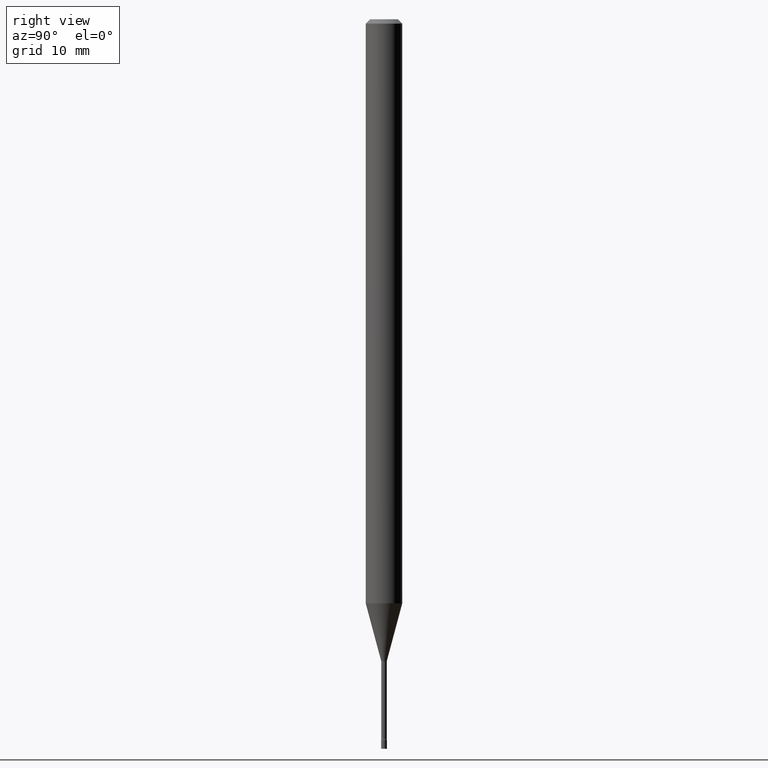
[diagram: clean part render]
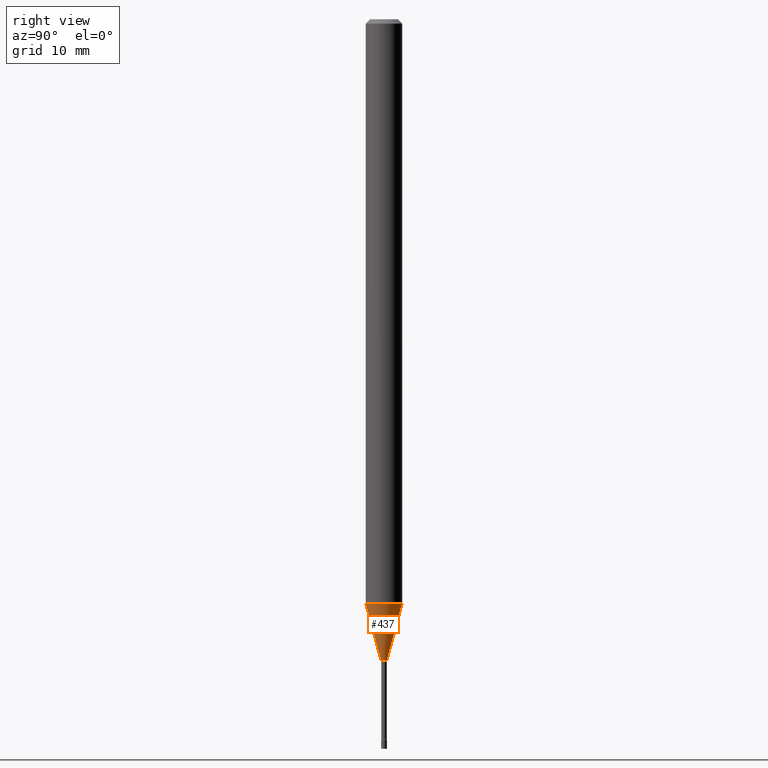
[diagram: same view with one face highlighted and labeled with its STEP entity id]
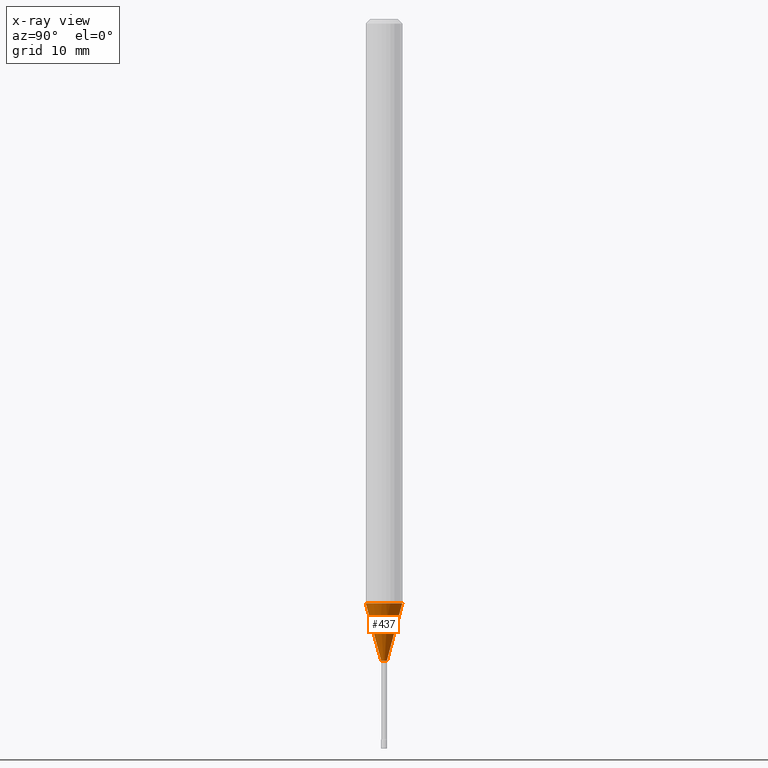
[diagram: x-ray of the same camera — body ghosted, the highlighted face saturated]
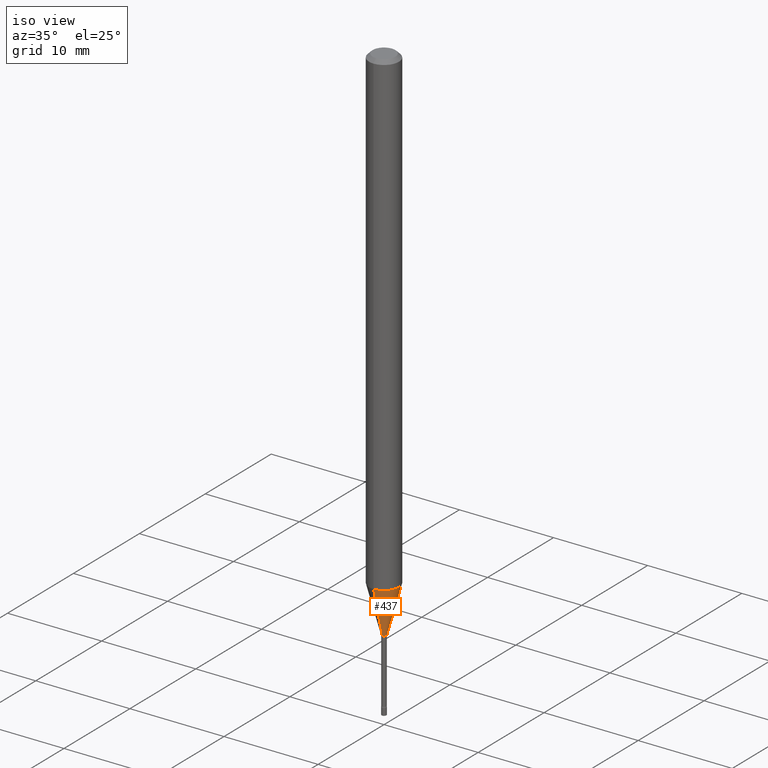
[diagram: same view with one face highlighted and labeled with its STEP entity id]
A machine part, right view. The second image highlights one B-rep face of the part: STEP entity #437.
The next image is the same camera in x-ray: the body ghosted, the highlighted face saturated — about 0% of this face is hidden behind the body in this view.
A second angle (iso view) of the same face is appended — the face is thin or edge-on in the first view.
In plain terms, the highlighted conical surface has half-angle 15 deg.
Its self-contained STEP definition (entity closure, byte-faithful):
#41 = CARTESIAN_POINT ( 'NONE',  ( 4.440892098501114269E-16, 0.06249999999999299866, -2.001828102118093256 ) ) ;
#58 = DIRECTION ( 'NONE',  ( -1.807323732225328562E-15, -0.2588190451025179639, 0.9659258262890690894 ) ) ;
#73 = CIRCLE ( 'NONE', #368, 0.009911112605663977004 ) ;
#84 = CARTESIAN_POINT ( 'NONE',  ( 2.572559502513572182E-16, 0.009911112605656302588, -2.198092501787273001 ) ) ;
#94 = CONICAL_SURFACE ( 'NONE', #310, 0.009911112605663977004, 0.2617993877991500740 ) ;
#109 = ORIENTED_EDGE ( 'NONE', *, *, #221, .F. ) ;
#112 = VECTOR ( 'NONE', #58, 39.37007874015748854 ) ;
#156 = LINE ( 'NONE', #330, #326 ) ;
#163 = DIRECTION ( 'NONE',  ( -6.982962677686265922E-15, -1.000000000000000000, 0.000000000000000000 ) ) ;
#183 = EDGE_CURVE ( 'NONE', #185, #269, #73, .T. ) ;
#184 = DIRECTION ( 'NONE',  ( -6.982962677686265922E-15, -1.000000000000000000, 0.000000000000000000 ) ) ;
#185 = VERTEX_POINT ( 'NONE', #438 ) ;
#187 = CIRCLE ( 'NONE', #274, 0.06250000000000000000 ) ;
#189 = FACE_OUTER_BOUND ( 'NONE', #218, .T. ) ;
#190 = VERTEX_POINT ( 'NONE', #280 ) ;
#200 = DIRECTION ( 'NONE',  ( -2.445536542724447659E-29, 3.491384336263527933E-15, 1.000000000000000000 ) ) ;
#217 = LINE ( 'NONE', #380, #112 ) ;
#218 = EDGE_LOOP ( 'NONE', ( #296, #278, #224, #109 ) ) ;
#221 = EDGE_CURVE ( 'NONE', #185, #190, #217, .T. ) ;
#224 = ORIENTED_EDGE ( 'NONE', *, *, #238, .F. ) ;
#238 = EDGE_CURVE ( 'NONE', #190, #308, #187, .T. ) ;
#257 = EDGE_CURVE ( 'NONE', #269, #308, #156, .T. ) ;
#269 = VERTEX_POINT ( 'NONE', #84 ) ;
#274 = AXIS2_PLACEMENT_3D ( 'NONE', #460, #292, #454 ) ;
#278 = ORIENTED_EDGE ( 'NONE', *, *, #257, .T. ) ;
#280 = CARTESIAN_POINT ( 'NONE',  ( -4.364351673553426614E-16, -0.06250000000000699441, -2.001828102118092811 ) ) ;
#284 = DIRECTION ( 'NONE',  ( 1.839019923739598738E-15, 0.2588190451025247363, 0.9659258262890673130 ) ) ;
#292 = DIRECTION ( 'NONE',  ( -2.445536542724447659E-29, 3.491384336263527933E-15, 1.000000000000000000 ) ) ;
#296 = ORIENTED_EDGE ( 'NONE', *, *, #183, .T. ) ;
#308 = VERTEX_POINT ( 'NONE', #41 ) ;
#310 = AXIS2_PLACEMENT_3D ( 'NONE', #355, #509, #184 ) ;
#326 = VECTOR ( 'NONE', #284, 39.37007874015748854 ) ;
#330 = CARTESIAN_POINT ( 'NONE',  ( 7.042269065260271360E-17, 0.009911112605656302588, -2.198092501787273001 ) ) ;
#355 = CARTESIAN_POINT ( 'NONE',  ( 5.375515537409379178E-29, -7.674385730398396481E-15, -2.198092501787273001 ) ) ;
#368 = AXIS2_PLACEMENT_3D ( 'NONE', #495, #200, #163 ) ;
#380 = CARTESIAN_POINT ( 'NONE',  ( -6.920892941964366252E-17, -0.009911112605671651421, -2.198092501787273001 ) ) ;
#437 = ADVANCED_FACE ( 'NONE', ( #189 ), #94, .T. ) ;
#438 = CARTESIAN_POINT ( 'NONE',  ( -6.920892941964366252E-17, -0.009911112605671651421, -2.198092501787273001 ) ) ;
#454 = DIRECTION ( 'NONE',  ( -6.982962677686265922E-15, -1.000000000000000000, 4.370956789862821150E-15 ) ) ;
#460 = CARTESIAN_POINT ( 'NONE',  ( 4.895543775982524061E-29, -6.989151279627256270E-15, -2.001828102118093256 ) ) ;
#495 = CARTESIAN_POINT ( 'NONE',  ( 5.375515537409379178E-29, -7.674385730398396481E-15, -2.198092501787273001 ) ) ;
#509 = DIRECTION ( 'NONE',  ( -2.445536542724447659E-29, 3.491384336263527933E-15, 1.000000000000000000 ) ) ;